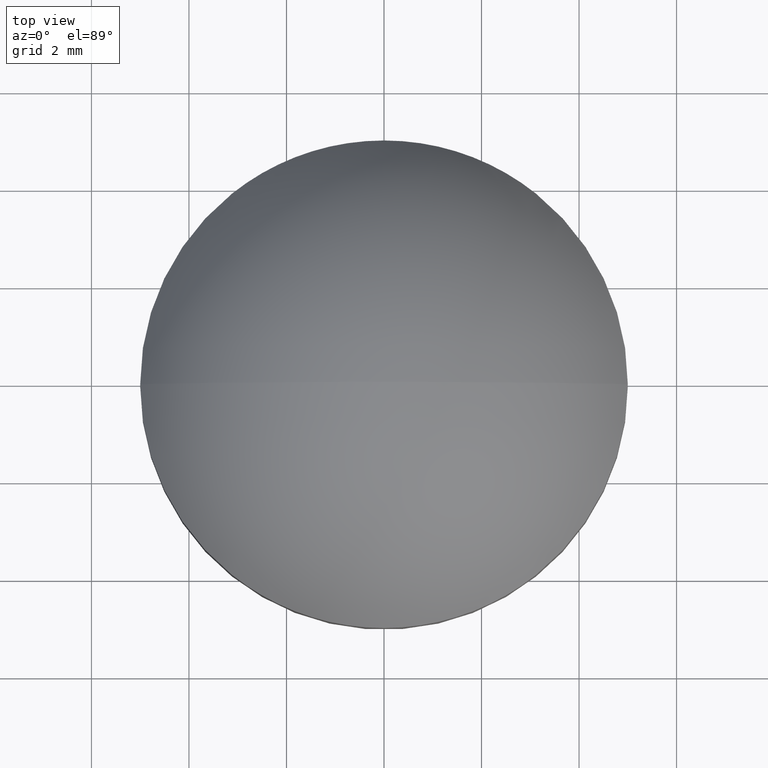
[diagram: clean part render]
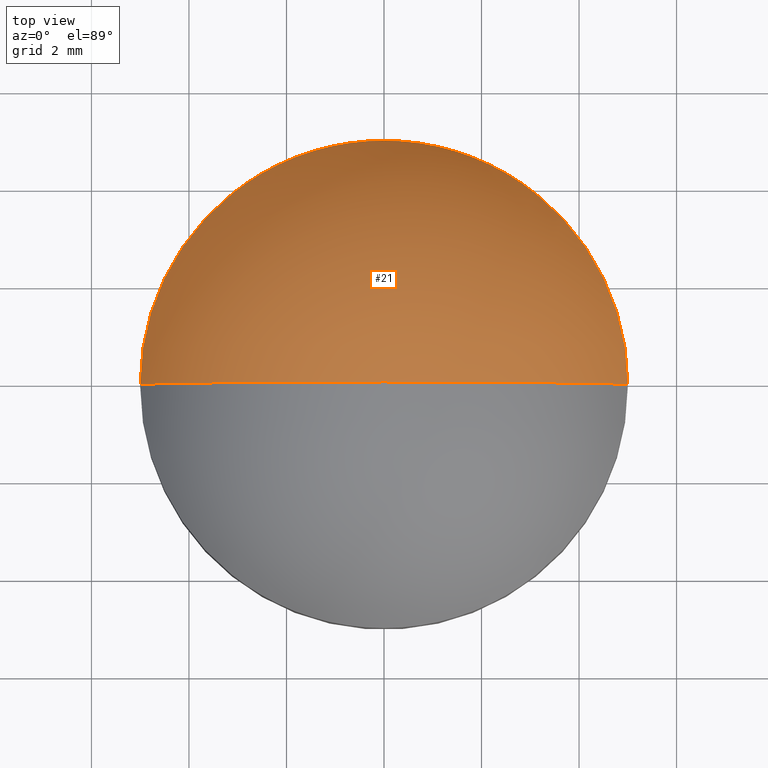
[diagram: same view with one face highlighted and labeled with its STEP entity id]
A machine part, top view. The second image highlights one B-rep face of the part: STEP entity #21.
In plain terms, the highlighted spherical surface has radius 5.8753 mm.
Its self-contained STEP definition (entity closure, byte-faithful):
#2 = FACE_OUTER_BOUND ( 'NONE', #82, .T. ) ;
#10 = AXIS2_PLACEMENT_3D ( 'NONE', #205, #157, #11 ) ;
#11 = DIRECTION ( 'NONE',  ( 0.000000000000000000, 0.000000000000000000, 1.000000000000000000 ) ) ;
#20 = AXIS2_PLACEMENT_3D ( 'NONE', #84, #36, #214 ) ;
#21 = ADVANCED_FACE ( 'NONE', ( #2 ), #85, .T. ) ;
#36 = DIRECTION ( 'NONE',  ( -0.000000000000000000, -1.000000000000000000, 0.000000000000000000 ) ) ;
#38 = CIRCLE ( 'NONE', #10, 5.875286738351255700 ) ;
#42 = DIRECTION ( 'NONE',  ( 1.000000000000000000, -1.224646799147353207E-16, 0.000000000000000000 ) ) ;
#43 = EDGE_CURVE ( 'NONE', #201, #66, #216, .T. ) ;
#44 = CARTESIAN_POINT ( 'NONE',  ( 5.000000000000000000, 6.123233995736766282E-16, 2.209999999999999964 ) ) ;
#57 = DIRECTION ( 'NONE',  ( -1.224646799147353207E-16, -1.000000000000000000, -0.000000000000000000 ) ) ;
#58 = CIRCLE ( 'NONE', #153, 5.875286738351255700 ) ;
#61 = CARTESIAN_POINT ( 'NONE',  ( -3.597575549097378931E-16, 0.000000000000000000, 5.000000000000000888 ) ) ;
#66 = VERTEX_POINT ( 'NONE', #77 ) ;
#67 = VERTEX_POINT ( 'NONE', #61 ) ;
#71 = DIRECTION ( 'NONE',  ( 0.000000000000000000, 0.000000000000000000, 1.000000000000000000 ) ) ;
#77 = CARTESIAN_POINT ( 'NONE',  ( -5.000000000000000000, 0.000000000000000000, 2.209999999999999964 ) ) ;
#82 = EDGE_LOOP ( 'NONE', ( #98, #196, #118 ) ) ;
#84 = CARTESIAN_POINT ( 'NONE',  ( 0.000000000000000000, 0.000000000000000000, -0.8752867383512550337 ) ) ;
#85 = SPHERICAL_SURFACE ( 'NONE', #20, 5.875286738351255700 ) ;
#97 = EDGE_CURVE ( 'NONE', #66, #67, #38, .T. ) ;
#98 = ORIENTED_EDGE ( 'NONE', *, *, #119, .F. ) ;
#118 = ORIENTED_EDGE ( 'NONE', *, *, #97, .T. ) ;
#119 = EDGE_CURVE ( 'NONE', #201, #67, #58, .T. ) ;
#126 = CARTESIAN_POINT ( 'NONE',  ( 0.000000000000000000, 0.000000000000000000, -0.8752867383512550337 ) ) ;
#133 = DIRECTION ( 'NONE',  ( 1.000000000000000000, 0.000000000000000000, 0.000000000000000000 ) ) ;
#153 = AXIS2_PLACEMENT_3D ( 'NONE', #126, #57, #42 ) ;
#157 = DIRECTION ( 'NONE',  ( 0.000000000000000000, 1.000000000000000000, 0.000000000000000000 ) ) ;
#185 = AXIS2_PLACEMENT_3D ( 'NONE', #186, #71, #133 ) ;
#186 = CARTESIAN_POINT ( 'NONE',  ( 0.000000000000000000, 0.000000000000000000, 2.209999999999999964 ) ) ;
#196 = ORIENTED_EDGE ( 'NONE', *, *, #43, .T. ) ;
#201 = VERTEX_POINT ( 'NONE', #44 ) ;
#205 = CARTESIAN_POINT ( 'NONE',  ( 0.000000000000000000, 0.000000000000000000, -0.8752867383512550337 ) ) ;
#214 = DIRECTION ( 'NONE',  ( -1.000000000000000000, 0.000000000000000000, 0.000000000000000000 ) ) ;
#216 = CIRCLE ( 'NONE', #185, 5.000000000000000000 ) ;